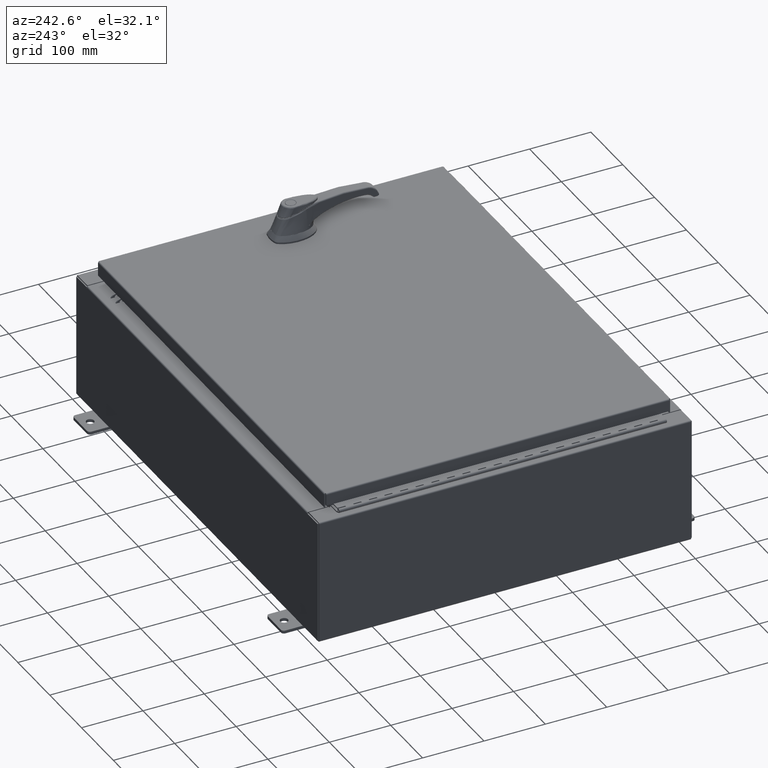
[diagram: clean part render]
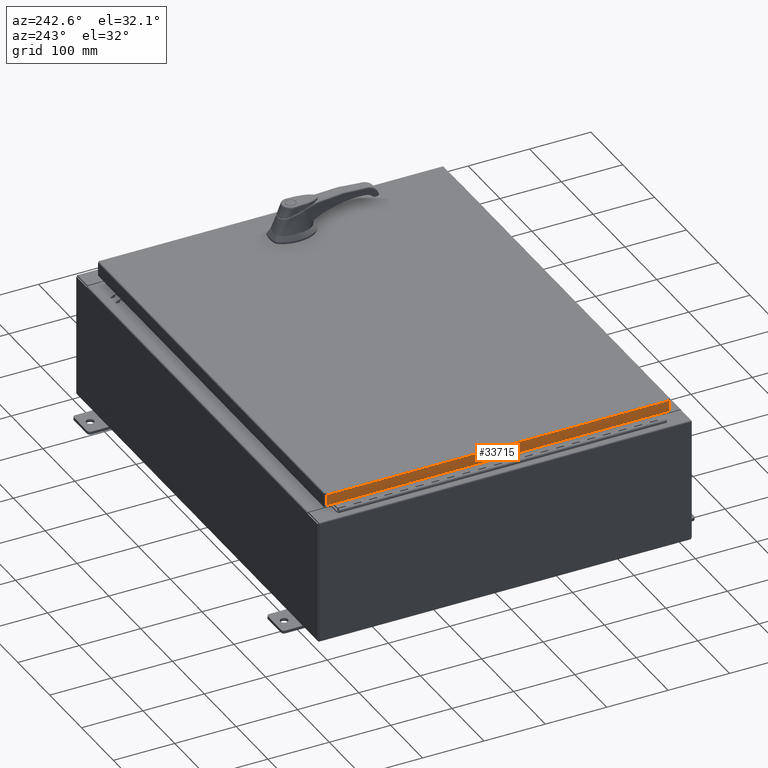
[diagram: same view with one face highlighted and labeled with its STEP entity id]
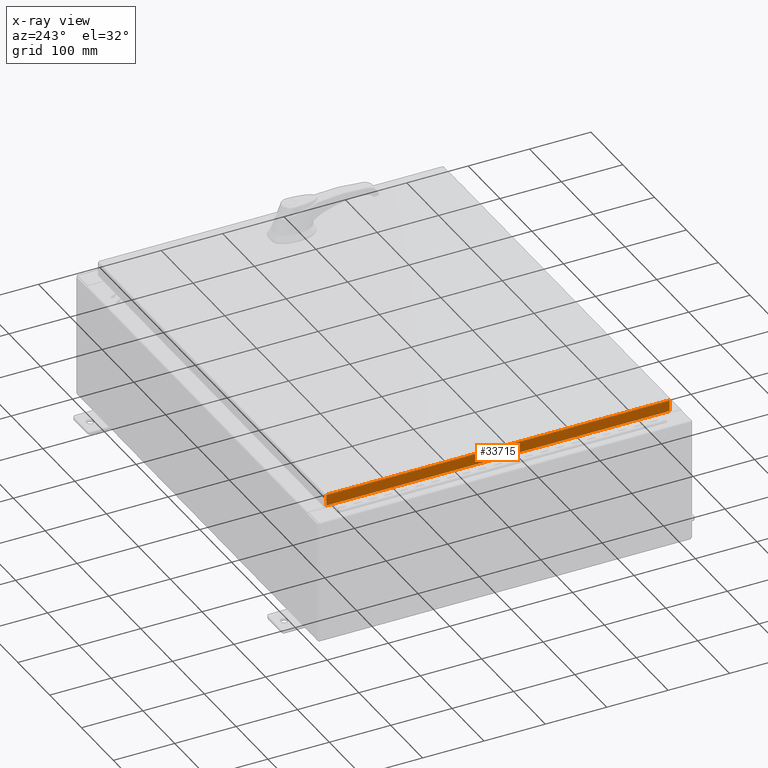
[diagram: x-ray of the same camera — body ghosted, the highlighted face saturated]
A machine part, auxiliary view. The second image highlights one B-rep face of the part: STEP entity #33715.
The next image is the same camera in x-ray: the body ghosted, the highlighted face saturated — about 0% of this face is hidden behind the body in this view.
In plain terms, the highlighted planar face has unit normal (1, 0, -0).
Its self-contained STEP definition (entity closure, byte-faithful):
#3679 = CARTESIAN_POINT ( 'NONE',  ( -14.07799999999999900, -11.00515786437626700, -0.7949999999999996000 ) ) ;
#4885 = ORIENTED_EDGE ( 'NONE', *, *, #28766, .F. ) ;
#13681 = LINE ( 'NONE', #58972, #57518 ) ;
#15103 = VERTEX_POINT ( 'NONE', #87295 ) ;
#16054 = LINE ( 'NONE', #104509, #103816 ) ;
#20504 = EDGE_CURVE ( 'NONE', #110649, #15103, #13681, .T. ) ;
#23071 = EDGE_CURVE ( 'NONE', #15103, #45494, #16054, .T. ) ;
#23244 = CARTESIAN_POINT ( 'NONE',  ( -14.07799999999999800, 11.00515786437626900, -0.08770000000000004200 ) ) ;
#28766 = EDGE_CURVE ( 'NONE', #45494, #31801, #74937, .T. ) ;
#31801 = VERTEX_POINT ( 'NONE', #105381 ) ;
#33715 = ADVANCED_FACE ( 'NONE', ( #91548 ), #89144, .F. ) ;
#33855 = EDGE_CURVE ( 'NONE', #110649, #31801, #62708, .T. ) ;
#45444 = DIRECTION ( 'NONE',  ( -3.034122441942816500E-015, 0.0000000000000000000, -1.000000000000000000 ) ) ;
#45494 = VERTEX_POINT ( 'NONE', #3679 ) ;
#46172 = DIRECTION ( 'NONE',  ( 4.379057701015054300E-047, 1.000000000000000000, 1.231227687788112300E-016 ) ) ;
#48793 = ORIENTED_EDGE ( 'NONE', *, *, #20504, .F. ) ;
#51289 = ORIENTED_EDGE ( 'NONE', *, *, #23071, .F. ) ;
#57518 = VECTOR ( 'NONE', #85013, 39.37007874015748100 ) ;
#58972 = CARTESIAN_POINT ( 'NONE',  ( -14.07799999999999800, -11.09400000000000100, -0.08770000000000004200 ) ) ;
#62708 = LINE ( 'NONE', #91053, #83283 ) ;
#63813 = CARTESIAN_POINT ( 'NONE',  ( -14.07799999999999900, -11.09400000000000100, -0.7949999999999997100 ) ) ;
#71503 = CARTESIAN_POINT ( 'NONE',  ( -14.07799999999999800, -5.259112207480525900E-030, 4.297518939368254200E-014 ) ) ;
#72199 = VECTOR ( 'NONE', #46172, 39.37007874015748100 ) ;
#74937 = LINE ( 'NONE', #63813, #72199 ) ;
#83283 = VECTOR ( 'NONE', #99850, 39.37007874015748100 ) ;
#83803 = ORIENTED_EDGE ( 'NONE', *, *, #33855, .T. ) ;
#85013 = DIRECTION ( 'NONE',  ( 3.735695558659274900E-031, -1.000000000000000000, -1.101212895818006000E-045 ) ) ;
#87295 = CARTESIAN_POINT ( 'NONE',  ( -14.07799999999999800, -11.00515786437626900, -0.08770000000000007000 ) ) ;
#88692 = EDGE_LOOP ( 'NONE', ( #48793, #83803, #4885, #51289 ) ) ;
#89144 = PLANE ( 'NONE',  #90818 ) ;
#90818 = AXIS2_PLACEMENT_3D ( 'NONE', #71503, #97967, #45444 ) ;
#91053 = CARTESIAN_POINT ( 'NONE',  ( -14.07799999999999800, 11.00515786437626700, 1.198237960226675300E-013 ) ) ;
#91548 = FACE_OUTER_BOUND ( 'NONE', #88692, .T. ) ;
#97967 = DIRECTION ( 'NONE',  ( 1.000000000000000000, 3.735695558659274400E-031, -3.034122441942816500E-015 ) ) ;
#99850 = DIRECTION ( 'NONE',  ( -3.034122441942816500E-015, 6.982962677686265900E-015, -1.000000000000000000 ) ) ;
#103816 = VECTOR ( 'NONE', #113347, 39.37007874015748100 ) ;
#104509 = CARTESIAN_POINT ( 'NONE',  ( -14.07799999999999800, -11.00515786437627100, -0.07469999999999976700 ) ) ;
#105381 = CARTESIAN_POINT ( 'NONE',  ( -14.07799999999999900, 11.00515786437627100, -0.7949999999999969300 ) ) ;
#110649 = VERTEX_POINT ( 'NONE', #23244 ) ;
#113347 = DIRECTION ( 'NONE',  ( -3.034122441942816500E-015, 6.982962677686265900E-015, -1.000000000000000000 ) ) ;